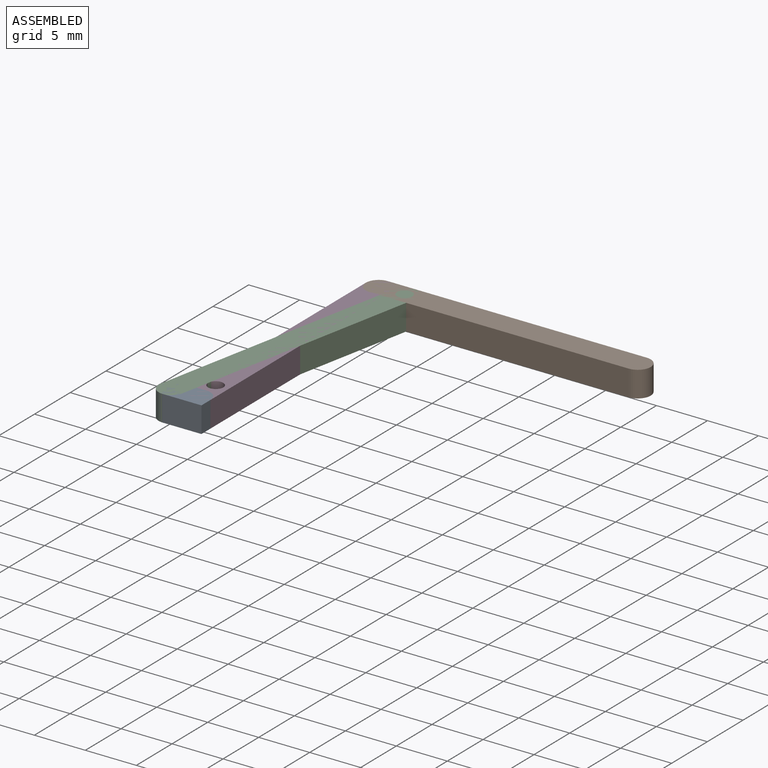
[diagram: assembled view]
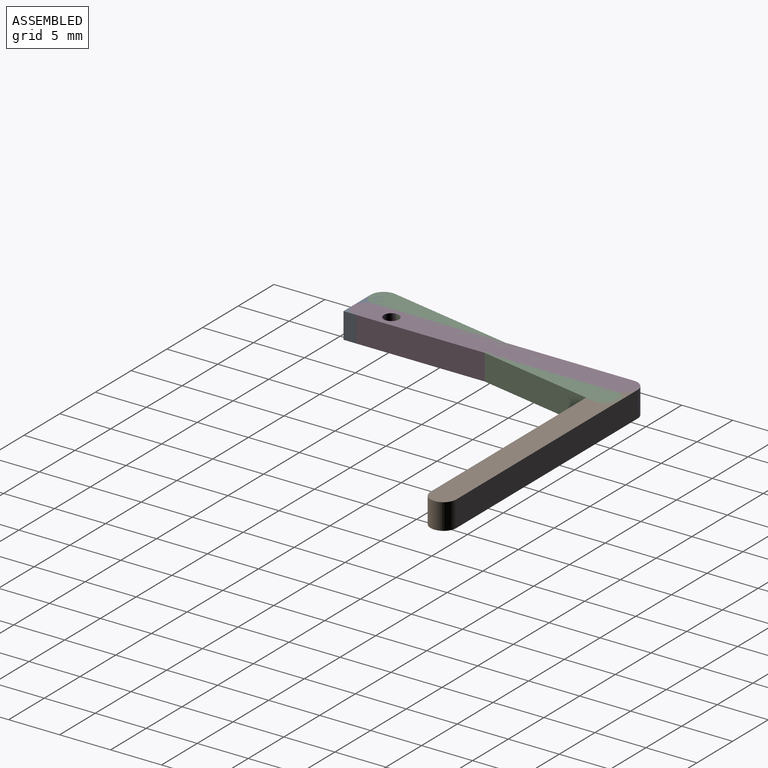
[diagram: assembled view, second angle]
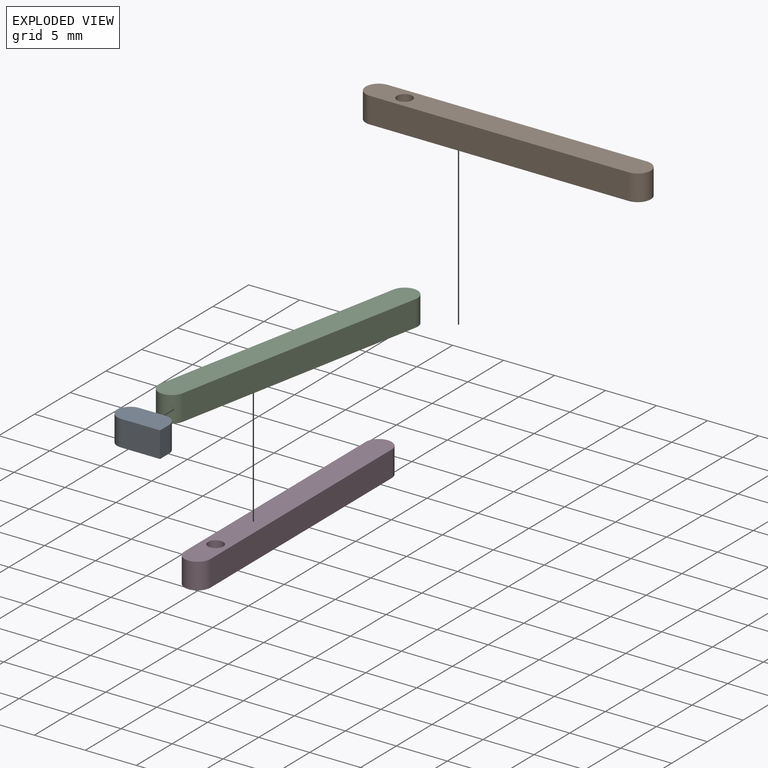
[diagram: exploded view]
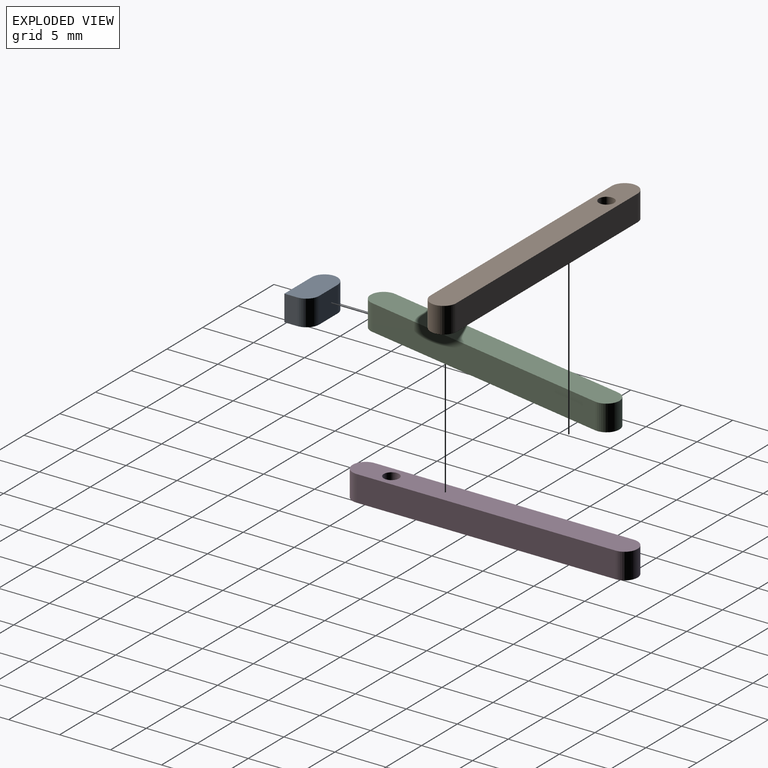
[diagram: exploded view, second angle]
ASSEMBLY  parts=4 mates=4
PART A: 7 faces, bbox 5.1x2.5x2.5 mm
  f0: plane 2.54x2.54mm, normal (0,-1,0), area 6.5mm2, adj f1,f4,f5,f6
  f1: cylinder r=1.27mm len=2.54mm, axis (0,0,-1), area 10.1mm2, adj f0,f2,f5,f6
  f2: plane 3.81x2.54mm, normal (0,1,0), area 9.7mm2, adj f1,f3,f5,f6
  f3: plane 2.54x1.27mm, normal (-1,0,0), area 3.2mm2, adj f2,f4,f5,f6
  f4: cylinder r=1.27mm len=2.54mm, axis (0,0,-1), area 5.1mm2, adj f0,f3,f5,f6
  f5: plane 5.08x2.54mm, normal (0,0,1), area 11.9mm2, adj f0,f1,f2,f3,f4
  f6: plane 5.08x2.54mm, normal (0,0,-1), area 11.9mm2, adj f0,f1,f2,f3,f4
PART B: 7 faces, bbox 27.9x2.5x2.5 mm
  f0: plane 25.4x2.54mm, normal (0,-1,0), area 64.5mm2, adj f1,f3,f4,f5
  f1: cylinder r=1.27mm len=2.54mm, axis (0,0,-1), area 10.1mm2, adj f0,f2,f4,f5
  f2: plane 25.4x2.54mm, normal (0,1,0), area 64.5mm2, adj f1,f3,f4,f5
  f3: cylinder r=1.27mm len=2.54mm, axis (0,0,-1), area 10.1mm2, adj f0,f2,f4,f5
  f4: plane 27.94x2.54mm, normal (0,0,1), area 67.8mm2, adj f0,f1,f2,f3,f6
  f5: plane 27.94x2.54mm, normal (0,0,-1), area 67.8mm2, adj f0,f1,f2,f3,f6
  f6: cylinder r=0.75mm len=2.54mm, axis (0,0,-1), area 12mm2, adj f4,f5
PART C: 6 faces, bbox 28.4x2.5x2.5 mm
  f0: plane 25.9x2.54mm, normal (0,1,0), area 65.8mm2, adj f1,f3,f4,f5
  f1: cylinder r=1.27mm len=2.54mm, axis (0,0,-1), area 10.1mm2, adj f0,f2,f4,f5
  f2: plane 25.9x2.54mm, normal (0,-1,0), area 65.8mm2, adj f1,f3,f4,f5
  f3: cylinder r=1.27mm len=2.54mm, axis (0,0,-1), area 10.1mm2, adj f0,f2,f4,f5
  f4: plane 28.44x2.54mm, normal (0,0,1), area 70.9mm2, adj f0,f1,f2,f3
  f5: plane 28.44x2.54mm, normal (0,0,-1), area 70.9mm2, adj f0,f1,f2,f3
PART D: same geometry as B
PLACE A rot(axis=(0,0,-1),180deg) t=(0,0,-2.54)mm fixed
PLACE B rot(axis=(0,0,1),0deg) t=(12.68,25.41,-2.54)mm
PLACE C rot(axis=(0,0,-1),101.3deg) t=(-0.01,12.7,-2.54)mm
PLACE D rot(axis=(0,0,1),90deg) t=(-0.01,12.7,-2.54)mm
MATE revolute D.f3 <-> A.f4  axis (0,0,1) through (0,0,0)mm
MATE revolute C.f1 <-> B.f6  axis (0,0,1) through (2.52,25.4,0)mm
MATE revolute C.f3 <-> A.f1  axis (0,0,1) through (-2.54,0,0)mm
MATE slider D.f1 <-> B.f3  axis (0,0,1) through (-0.02,25.4,0)mm
